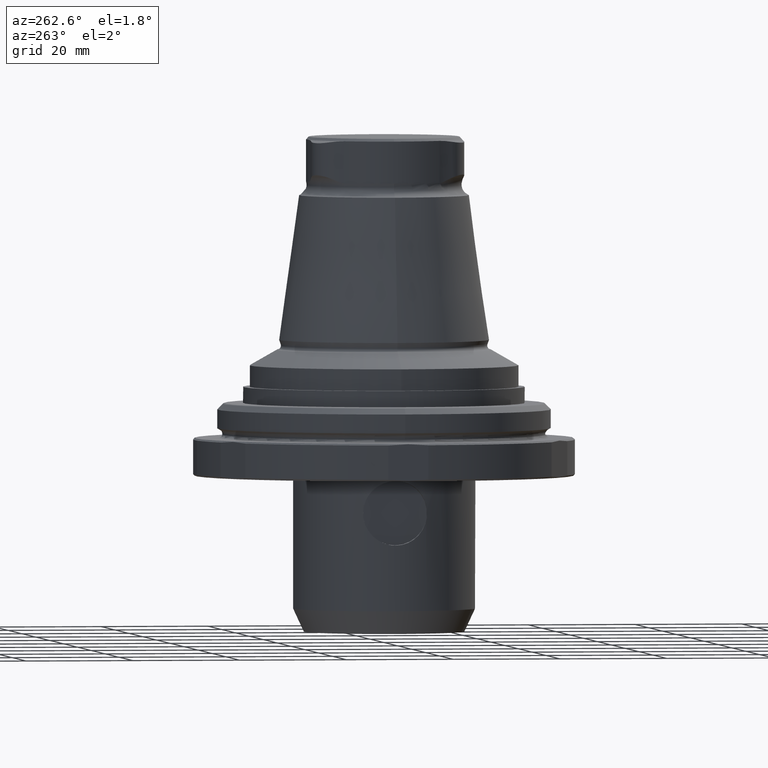
[diagram: clean part render]
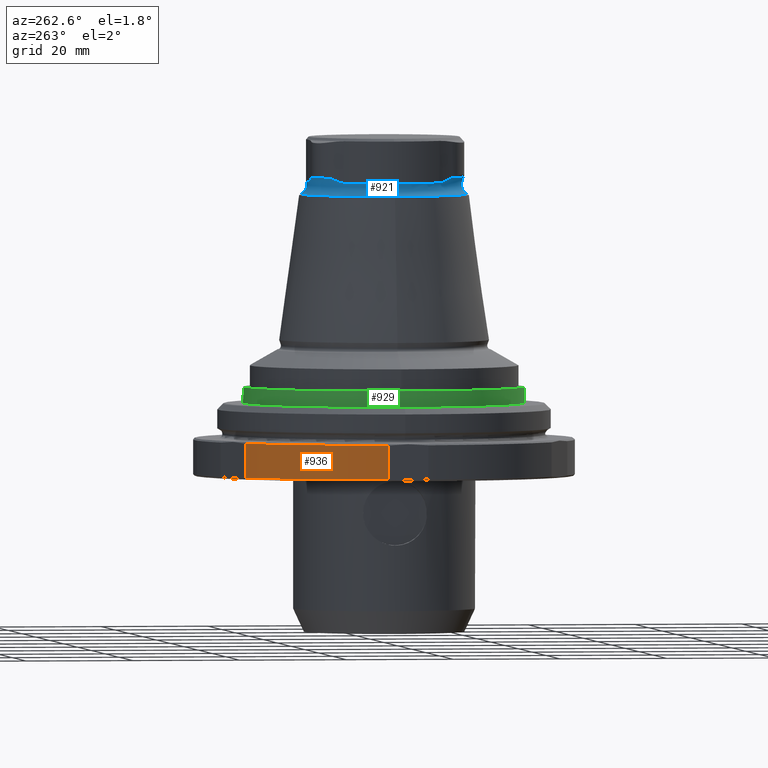
[diagram: same view with three faces highlighted in distinct colors, each labeled with its STEP entity id]
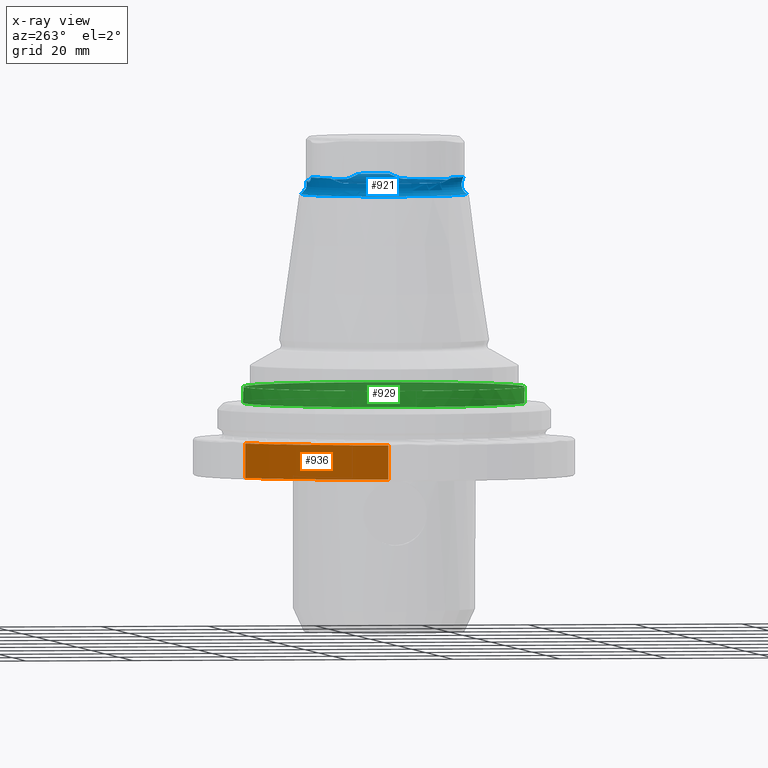
[diagram: x-ray of the same camera — body ghosted, the three highlighted faces saturated]
A machine part, auxiliary view with three faces highlighted in distinct colors.
The next image is the same camera in x-ray (body ghosted, the three faces saturated) — at least one of them is partly hidden behind the body in this view.
Their STEP definitions:

[orange] entity #936 — the highlighted cylindrical surface (partial cylindrical patch) has radius 35.5 mm, axis along (-0, -0, -1).
#43=LINE('',#1765,#71);
#44=LINE('',#1766,#72);
#71=VECTOR('',#1285,1000.);
#72=VECTOR('',#1286,1000.);
#141=CYLINDRICAL_SURFACE('',#1059,35.5);
#342=ORIENTED_EDGE('',*,*,#509,.F.);
#343=ORIENTED_EDGE('',*,*,#521,.T.);
#344=ORIENTED_EDGE('',*,*,#497,.T.);
#345=ORIENTED_EDGE('',*,*,#522,.T.);
#497=EDGE_CURVE('',#604,#603,#667,.T.);
#509=EDGE_CURVE('',#613,#614,#672,.T.);
#521=EDGE_CURVE('',#613,#604,#43,.F.);
#522=EDGE_CURVE('',#603,#614,#44,.T.);
#603=VERTEX_POINT('',#1687);
#604=VERTEX_POINT('',#1689);
#613=VERTEX_POINT('',#1726);
#614=VERTEX_POINT('',#1728);
#667=CIRCLE('',#1045,35.5);
#672=CIRCLE('',#1052,35.5);
#745=EDGE_LOOP('',(#342,#343,#344,#345));
#841=FACE_BOUND('',#745,.T.);
#936=ADVANCED_FACE('',(#841),#141,.T.);
#1045=AXIS2_PLACEMENT_3D('',#1688,#1251,#1252);
#1052=AXIS2_PLACEMENT_3D('',#1727,#1267,#1268);
#1059=AXIS2_PLACEMENT_3D('',#1764,#1283,#1284);
#1251=DIRECTION('',(-5.47430718319515E-16,-9.52839907700963E-18,-1.));
#1252=DIRECTION('',(-1.,8.32667268468868E-16,5.47430716006892E-16));
#1267=DIRECTION('',(-5.47430718319515E-16,-9.52839907700963E-18,-1.));
#1268=DIRECTION('',(-1.,8.32667268468868E-16,5.47430716006892E-16));
#1283=DIRECTION('',(-5.47430718319515E-16,-9.52839907700963E-18,-1.));
#1284=DIRECTION('',(-1.,8.32667268468868E-16,5.47430716006892E-16));
#1285=DIRECTION('',(-5.47430718319515E-16,-9.52839907700963E-18,-1.));
#1286=DIRECTION('',(-5.47430718319515E-16,-9.52839907700963E-18,-1.));
#1687=CARTESIAN_POINT('',(-20.9088341473602,28.6892079813679,-1.29999999999999));
#1688=CARTESIAN_POINT('',(-8.83659486284364E-14,-9.81673936924985E-14,-1.3));
#1689=CARTESIAN_POINT('',(-35.3000000000001,3.76297754444529,-1.29999999999998));
#1726=CARTESIAN_POINT('',(-35.3000000000001,3.76297754444529,-7.69999999999999));
#1727=CARTESIAN_POINT('',(-9.18695052256813E-14,-9.82283754465914E-14,-7.70000000000001));
#1728=CARTESIAN_POINT('',(-20.9088341473602,28.6892079813679,-7.7));
#1764=CARTESIAN_POINT('',(-8.82017194129406E-14,-9.81645351727754E-14,-1.));
#1765=CARTESIAN_POINT('',(-35.3000000000001,3.76297754444529,-0.999999999999984));
#1766=CARTESIAN_POINT('',(-20.9088341473602,28.6892079813679,-0.999999999999992));

[blue] entity #921 — the highlighted toroidal blend (fillet) surface has major radius 16.4 mm and minor (blend) radius 2 mm.
#20=TOROIDAL_SURFACE('',#1018,16.4,2.);
#92=B_SPLINE_CURVE_WITH_KNOTS('',3,(#1497,#1498,#1499,#1500,#1501),
 .UNSPECIFIED.,.F.,.F.,(4,1,4),(2.3253959497874E-7,0.0015389400940897,0.00307764764858442),
 .UNSPECIFIED.);
#94=B_SPLINE_CURVE_WITH_KNOTS('',3,(#1515,#1516,#1517,#1518),
 .UNSPECIFIED.,.F.,.F.,(4,4),(0.00622155540779305,0.00622754949232766),
 .UNSPECIFIED.);
#95=B_SPLINE_CURVE_WITH_KNOTS('',3,(#1519,#1520,#1521,#1522),
 .UNSPECIFIED.,.F.,.F.,(4,4),(2.1221164720392E-7,6.21085284075806E-6),
 .UNSPECIFIED.);
#96=B_SPLINE_CURVE_WITH_KNOTS('',3,(#1526,#1527,#1528,#1529,#1530),
 .UNSPECIFIED.,.F.,.F.,(4,1,4),(1.98303930943962E-7,0.00153324672622609,
0.00306629514852124),.UNSPECIFIED.);
#97=B_SPLINE_CURVE_WITH_KNOTS('',3,(#1538,#1539,#1540,#1541,#1542),
 .UNSPECIFIED.,.F.,.F.,(4,1,4),(2.57032852111142E-7,0.00153896376344887,
0.00307767049404562),.UNSPECIFIED.);
#99=B_SPLINE_CURVE_WITH_KNOTS('',3,(#1556,#1557,#1558,#1559),
 .UNSPECIFIED.,.F.,.F.,(4,4),(6.19763373146291E-7,6.61840456632411E-6),
 .UNSPECIFIED.);
#100=B_SPLINE_CURVE_WITH_KNOTS('',3,(#1560,#1561,#1562,#1563),
 .UNSPECIFIED.,.F.,.F.,(4,4),(2.57948989344727E-7,6.25659018116285E-6),
 .UNSPECIFIED.);
#101=B_SPLINE_CURVE_WITH_KNOTS('',3,(#1567,#1568,#1569,#1570,#1571),
 .UNSPECIFIED.,.F.,.F.,(4,1,4),(2.11842187331082E-7,0.0015332601506275,
0.00306630845906767),.UNSPECIFIED.);
#102=B_SPLINE_CURVE_WITH_KNOTS('',3,(#1579,#1580,#1581,#1582,#1583),
 .UNSPECIFIED.,.F.,.F.,(4,1,4),(2.11460452280959E-7,0.00153891768004006,
0.00307762389962784),.UNSPECIFIED.);
#104=B_SPLINE_CURVE_WITH_KNOTS('',3,(#1597,#1598,#1599,#1600),
 .UNSPECIFIED.,.F.,.F.,(4,4),(0.00622861034463852,0.00623459694737962),
 .UNSPECIFIED.);
#105=B_SPLINE_CURVE_WITH_KNOTS('',3,(#1601,#1602,#1603,#1604),
 .UNSPECIFIED.,.F.,.F.,(4,4),(2.33364163493583E-7,6.23200535773929E-6),
 .UNSPECIFIED.);
#106=B_SPLINE_CURVE_WITH_KNOTS('',3,(#1606,#1607,#1608,#1609,#1610),
 .UNSPECIFIED.,.F.,.F.,(4,1,4),(2.49139269261998E-7,0.00153329683370227,
0.00306634452813528),.UNSPECIFIED.);
#257=ORIENTED_EDGE('',*,*,#473,.F.);
#258=ORIENTED_EDGE('',*,*,#472,.T.);
#259=ORIENTED_EDGE('',*,*,#471,.T.);
#260=ORIENTED_EDGE('',*,*,#467,.T.);
#261=ORIENTED_EDGE('',*,*,#470,.T.);
#262=ORIENTED_EDGE('',*,*,#466,.T.);
#263=ORIENTED_EDGE('',*,*,#464,.T.);
#264=ORIENTED_EDGE('',*,*,#462,.T.);
#265=ORIENTED_EDGE('',*,*,#460,.T.);
#266=ORIENTED_EDGE('',*,*,#456,.T.);
#267=ORIENTED_EDGE('',*,*,#459,.T.);
#268=ORIENTED_EDGE('',*,*,#455,.T.);
#269=ORIENTED_EDGE('',*,*,#453,.T.);
#270=ORIENTED_EDGE('',*,*,#451,.T.);
#271=ORIENTED_EDGE('',*,*,#449,.T.);
#272=ORIENTED_EDGE('',*,*,#445,.T.);
#273=ORIENTED_EDGE('',*,*,#448,.T.);
#274=ORIENTED_EDGE('',*,*,#444,.T.);
#275=ORIENTED_EDGE('',*,*,#442,.T.);
#442=EDGE_CURVE('',#562,#563,#645,.T.);
#444=EDGE_CURVE('',#564,#562,#92,.T.);
#445=EDGE_CURVE('',#565,#566,#646,.T.);
#448=EDGE_CURVE('',#566,#564,#94,.T.);
#449=EDGE_CURVE('',#567,#565,#95,.T.);
#451=EDGE_CURVE('',#568,#567,#96,.T.);
#453=EDGE_CURVE('',#569,#568,#647,.T.);
#455=EDGE_CURVE('',#570,#569,#97,.T.);
#456=EDGE_CURVE('',#571,#572,#648,.T.);
#459=EDGE_CURVE('',#572,#570,#99,.T.);
#460=EDGE_CURVE('',#573,#571,#100,.T.);
#462=EDGE_CURVE('',#574,#573,#101,.T.);
#464=EDGE_CURVE('',#575,#574,#649,.T.);
#466=EDGE_CURVE('',#576,#575,#102,.T.);
#467=EDGE_CURVE('',#577,#578,#650,.T.);
#470=EDGE_CURVE('',#578,#576,#104,.T.);
#471=EDGE_CURVE('',#579,#577,#105,.T.);
#472=EDGE_CURVE('',#563,#579,#106,.T.);
#473=EDGE_CURVE('',#580,#580,#651,.T.);
#562=VERTEX_POINT('',#1490);
#563=VERTEX_POINT('',#1492);
#564=VERTEX_POINT('',#1496);
#565=VERTEX_POINT('',#1504);
#566=VERTEX_POINT('',#1505);
#567=VERTEX_POINT('',#1514);
#568=VERTEX_POINT('',#1525);
#569=VERTEX_POINT('',#1533);
#570=VERTEX_POINT('',#1537);
#571=VERTEX_POINT('',#1545);
#572=VERTEX_POINT('',#1546);
#573=VERTEX_POINT('',#1555);
#574=VERTEX_POINT('',#1566);
#575=VERTEX_POINT('',#1574);
#576=VERTEX_POINT('',#1578);
#577=VERTEX_POINT('',#1586);
#578=VERTEX_POINT('',#1587);
#579=VERTEX_POINT('',#1596);
#580=VERTEX_POINT('',#1613);
#645=CIRCLE('',#998,14.5);
#646=CIRCLE('',#1001,15.1144247806269);
#647=CIRCLE('',#1005,14.5);
#648=CIRCLE('',#1008,15.1144247806269);
#649=CIRCLE('',#1012,14.5);
#650=CIRCLE('',#1015,15.1144247806269);
#651=CIRCLE('',#1019,15.4);
#719=EDGE_LOOP('',(#257));
#720=EDGE_LOOP('',(#258,#259,#260,#261,#262,#263,#264,#265,#266,#267,#268,
#269,#270,#271,#272,#273,#274,#275));
#815=FACE_BOUND('',#719,.T.);
#816=FACE_BOUND('',#720,.T.);
#921=ADVANCED_FACE('',(#815,#816),#20,.F.);
#998=AXIS2_PLACEMENT_3D('',#1493,#1145,#1146);
#1001=AXIS2_PLACEMENT_3D('',#1503,#1152,#1153);
#1005=AXIS2_PLACEMENT_3D('',#1534,#1163,#1164);
#1008=AXIS2_PLACEMENT_3D('',#1544,#1170,#1171);
#1012=AXIS2_PLACEMENT_3D('',#1575,#1181,#1182);
#1015=AXIS2_PLACEMENT_3D('',#1585,#1188,#1189);
#1018=AXIS2_PLACEMENT_3D('',#1611,#1195,#1196);
#1019=AXIS2_PLACEMENT_3D('',#1612,#1197,#1198);
#1145=DIRECTION('',(-4.38328612912168E-16,-8.51929322185263E-24,-1.));
#1146=DIRECTION('',(-1.,9.77164313006873E-16,4.38328610599545E-16));
#1152=DIRECTION('',(-4.38328612912168E-16,-8.51929322185263E-24,-1.));
#1153=DIRECTION('',(-1.,9.77164313006873E-16,4.38328610599545E-16));
#1163=DIRECTION('',(-4.38328612912168E-16,-8.51929322185263E-24,-1.));
#1164=DIRECTION('',(-1.,9.77164313006873E-16,4.38328610599545E-16));
#1170=DIRECTION('',(-4.38328612912168E-16,-8.51929322185263E-24,-1.));
#1171=DIRECTION('',(-1.,9.77164313006873E-16,4.38328610599545E-16));
#1181=DIRECTION('',(-4.38328612912168E-16,-8.51929322185263E-24,-1.));
#1182=DIRECTION('',(-1.,9.77164313006873E-16,4.38328610599545E-16));
#1188=DIRECTION('',(-4.38328612912168E-16,-8.51929322185263E-24,-1.));
#1189=DIRECTION('',(-1.,9.77164313006873E-16,4.38328610599545E-16));
#1195=DIRECTION('',(-4.38328612912168E-16,-8.51929322185263E-24,-1.));
#1196=DIRECTION('',(-1.,9.77164313006873E-16,4.38328610599545E-16));
#1197=DIRECTION('',(-4.38328612912168E-16,-8.51929322185263E-24,-1.));
#1198=DIRECTION('',(-1.,9.77164313006873E-16,4.38328610599545E-16));
#1490=CARTESIAN_POINT('',(-11.4297801108245,-8.92245070696412,46.6780044888597));
#1492=CARTESIAN_POINT('',(-11.4297801108242,8.92245070696371,46.6780044888626));
#1493=CARTESIAN_POINT('',(-6.82790461535123E-14,-9.81645347706665E-14,46.6780044888626));
#1496=CARTESIAN_POINT('',(-9.89976921547157,-11.4179951797517,47.5836531554482));
#1497=CARTESIAN_POINT('',(-9.89976921547149,-11.4179951797516,47.5836531554482));
#1498=CARTESIAN_POINT('',(-10.1059201587806,-10.976867121887,47.4167929741393));
#1499=CARTESIAN_POINT('',(-10.554358847367,-10.1424507187893,47.0361424330323));
#1500=CARTESIAN_POINT('',(-11.1105799262753,-9.3313504633795,46.678004488855));
#1501=CARTESIAN_POINT('',(-11.4297801108226,-8.92245070696355,46.6780044888548));
#1503=CARTESIAN_POINT('',(-6.69052635934294E-14,-9.81645347629345E-14,47.5855935752607));
#1504=CARTESIAN_POINT('',(-4.9440444993606,-14.2829359880094,47.5855935752607));
#1505=CARTESIAN_POINT('',(-9.89736315656183,-11.4231361278926,47.5855935752607));
#1514=CARTESIAN_POINT('',(-4.93838927821661,-14.2824492220778,47.5836531554483));
#1515=CARTESIAN_POINT('',(-9.89736315656183,-11.4231361278926,47.5855935752607));
#1516=CARTESIAN_POINT('',(-9.89816627519147,-11.4214226642802,47.5849482311036));
#1517=CARTESIAN_POINT('',(-9.8989684047252,-11.4197087789407,47.5843013379119));
#1518=CARTESIAN_POINT('',(-9.89976921547157,-11.4179951797517,47.5836531554482));
#1519=CARTESIAN_POINT('',(-4.93838927821662,-14.2824492220778,47.5836531554483));
#1520=CARTESIAN_POINT('',(-4.94027378220326,-14.2826125059966,47.5843013648048));
#1521=CARTESIAN_POINT('',(-4.94215885657609,-14.2827747619097,47.5849481693393));
#1522=CARTESIAN_POINT('',(-4.94404449936061,-14.2829359880094,47.5855935752607));
#1525=CARTESIAN_POINT('',(-2.01217892083198,-14.3597052891257,46.6780044888626));
#1526=CARTESIAN_POINT('',(-2.01217892083233,-14.3597052891257,46.6780044888607));
#1527=CARTESIAN_POINT('',(-2.52756176568162,-14.2874863629232,46.6780044888607));
#1528=CARTESIAN_POINT('',(-3.50119874426205,-14.2118277609701,47.0344657481654));
#1529=CARTESIAN_POINT('',(-4.45266532455197,-14.2403633940976,47.4165795840098));
#1530=CARTESIAN_POINT('',(-4.9383892782166,-14.2824492220778,47.5836531554484));
#1533=CARTESIAN_POINT('',(13.4419590316585,-5.43725458216212,46.6780044888644));
#1534=CARTESIAN_POINT('',(-6.82790461535123E-14,-9.81645347706665E-14,46.6780044888626));
#1537=CARTESIAN_POINT('',(14.83815849369,-2.86445404232654,47.5836531554491));
#1538=CARTESIAN_POINT('',(14.8381584936899,-2.86445404232656,47.5836531554494));
#1539=CARTESIAN_POINT('',(14.5592060014918,-3.2635498240514,47.4167930582311));
#1540=CARTESIAN_POINT('',(14.0607998071633,-4.069116877366,47.0361429196281));
#1541=CARTESIAN_POINT('',(13.636476906111,-4.95636827091454,46.6780044888612));
#1542=CARTESIAN_POINT('',(13.4419590316577,-5.43725458216131,46.678004488861));
#1544=CARTESIAN_POINT('',(-6.69052635934294E-14,-9.81645347629345E-14,47.5855935752607));
#1545=CARTESIAN_POINT('',(14.8414076559226,2.85979986012096,47.5855935752607));
#1546=CARTESIAN_POINT('',(14.8414076559229,-2.85979986011986,47.5855935752607));
#1555=CARTESIAN_POINT('',(14.8381584936904,2.86445404232663,47.5836531554497));
#1556=CARTESIAN_POINT('',(14.8414076559229,-2.85979986011986,47.5855935752607));
#1557=CARTESIAN_POINT('',(14.8403252086261,-2.86135226163301,47.5849481693355));
#1558=CARTESIAN_POINT('',(14.8392421536976,-2.86290365597065,47.5843013648013));
#1559=CARTESIAN_POINT('',(14.83815849369,-2.86445404232658,47.5836531554492));
#1560=CARTESIAN_POINT('',(14.8381584936904,2.86445404232663,47.5836531554497));
#1561=CARTESIAN_POINT('',(14.8392421536978,2.86290365597105,47.5843013648016));
#1562=CARTESIAN_POINT('',(14.8403252086261,2.86135226163376,47.5849481693357));
#1563=CARTESIAN_POINT('',(14.8414076559226,2.85979986012096,47.5855935752607));
#1566=CARTESIAN_POINT('',(13.4419590316582,5.43725458216255,46.6780044888655));
#1567=CARTESIAN_POINT('',(13.4419590316582,5.43725458216254,46.6780044888655));
#1568=CARTESIAN_POINT('',(13.6371068531405,4.95481091838994,46.6780044888655));
#1569=CARTESIAN_POINT('',(14.0584032982657,4.07378667125613,47.034465720431));
#1570=CARTESIAN_POINT('',(14.5588491375802,3.26406038726901,47.4165795941159));
#1571=CARTESIAN_POINT('',(14.8381584936904,2.8644540423266,47.5836531554497));
#1574=CARTESIAN_POINT('',(-2.01217892083196,14.3597052891265,46.6780044888637));
#1575=CARTESIAN_POINT('',(-6.82790461535123E-14,-9.81645347706665E-14,46.6780044888626));
#1578=CARTESIAN_POINT('',(-4.9383892782157,14.2824492220786,47.5836531554488));
#1579=CARTESIAN_POINT('',(-4.93838927821567,14.2824492220785,47.5836531554489));
#1580=CARTESIAN_POINT('',(-4.45328599971568,14.2404171728506,47.4167930765007));
#1581=CARTESIAN_POINT('',(-3.50644175510599,14.2115682769748,47.0361431562619));
#1582=CARTESIAN_POINT('',(-2.52589799078184,14.2877195023031,46.6780044888607));
#1583=CARTESIAN_POINT('',(-2.01217892083231,14.3597052891259,46.6780044888607));
#1585=CARTESIAN_POINT('',(-6.69052635934294E-14,-9.81645347629345E-14,47.5855935752607));
#1586=CARTESIAN_POINT('',(-9.89736315656259,11.4231361278918,47.5855935752607));
#1587=CARTESIAN_POINT('',(-4.94404449935833,14.28293598801,47.5855935752607));
#1596=CARTESIAN_POINT('',(-9.89976921547194,11.4179951797517,47.5836531554485));
#1597=CARTESIAN_POINT('',(-4.94404449935832,14.28293598801,47.5855935752607));
#1598=CARTESIAN_POINT('',(-4.94215863661782,14.2827747431036,47.5849480940542));
#1599=CARTESIAN_POINT('',(-4.9402735622284,14.2826124869376,47.5843012891413));
#1600=CARTESIAN_POINT('',(-4.9383892782157,14.2824492220786,47.5836531554488));
#1601=CARTESIAN_POINT('',(-9.89976921547194,11.4179951797517,47.5836531554485));
#1602=CARTESIAN_POINT('',(-9.89896837150276,11.4197088500318,47.584301364803));
#1603=CARTESIAN_POINT('',(-9.89816635205902,11.4214225002831,47.5849481693375));
#1604=CARTESIAN_POINT('',(-9.89736315656259,11.4231361278918,47.5855935752607));
#1606=CARTESIAN_POINT('',(-11.4297801108241,8.92245070696387,46.6780044888616));
#1607=CARTESIAN_POINT('',(-11.1095464122082,9.33267440888899,46.6780044888616));
#1608=CARTESIAN_POINT('',(-10.5572042888355,10.1380410971447,47.0344654896771));
#1609=CARTESIAN_POINT('',(-10.1061838530727,10.9763028608224,47.4165795379235));
#1610=CARTESIAN_POINT('',(-9.89976921547192,11.4179951797516,47.5836531554486));
#1611=CARTESIAN_POINT('',(-6.855278228454E-14,-9.81645347759868E-14,46.0535046890228));
#1612=CARTESIAN_POINT('',(-6.83360294177673E-14,-9.81645347907426E-14,44.3214538814539));
#1613=CARTESIAN_POINT('',(-15.4000000000001,-8.31162043704368E-14,44.3214538814539));

[green] entity #929 — the highlighted cylindrical surface (bore or boss wall) has radius 26.2 mm, axis along (0, -0, 1).
#137=CYLINDRICAL_SURFACE('',#1034,26.2);
#290=ORIENTED_EDGE('',*,*,#480,.T.);
#291=ORIENTED_EDGE('',*,*,#481,.T.);
#480=EDGE_CURVE('',#587,#587,#658,.T.);
#481=EDGE_CURVE('',#588,#588,#659,.T.);
#587=VERTEX_POINT('',#1634);
#588=VERTEX_POINT('',#1637);
#658=CIRCLE('',#1033,26.2);
#659=CIRCLE('',#1035,26.2);
#735=EDGE_LOOP('',(#290));
#736=EDGE_LOOP('',(#291));
#831=FACE_BOUND('',#735,.T.);
#832=FACE_BOUND('',#736,.T.);
#929=ADVANCED_FACE('',(#831,#832),#137,.T.);
#1033=AXIS2_PLACEMENT_3D('',#1633,#1225,#1226);
#1034=AXIS2_PLACEMENT_3D('',#1635,#1227,#1228);
#1035=AXIS2_PLACEMENT_3D('',#1636,#1229,#1230);
#1225=DIRECTION('',(-5.5264198129461E-16,6.90472036344684E-17,-1.));
#1226=DIRECTION('',(-1.,9.77164313006873E-16,5.58279830278911E-16));
#1227=DIRECTION('',(5.5264198129461E-16,-7.81688594334958E-18,1.));
#1228=DIRECTION('',(1.,-9.77164313006873E-16,-5.58279830278911E-16));
#1229=DIRECTION('',(5.5264198129461E-16,5.34134317477693E-17,1.));
#1230=DIRECTION('',(1.,-9.77164313006873E-16,-5.58279830278911E-16));
#1633=CARTESIAN_POINT('',(-8.94460880349364E-14,-9.81718178561464E-14,8.5));
#1634=CARTESIAN_POINT('',(-26.2000000000001,-7.25701128553663E-14,8.50000000000001));
#1635=CARTESIAN_POINT('',(-9.02750510068783E-14,-9.81600925272314E-14,7.));
#1636=CARTESIAN_POINT('',(-8.02869289039323E-14,-9.81483671983164E-14,5.5));
#1637=CARTESIAN_POINT('',(26.1999999999999,-1.23750072199096E-13,5.49999999999998));